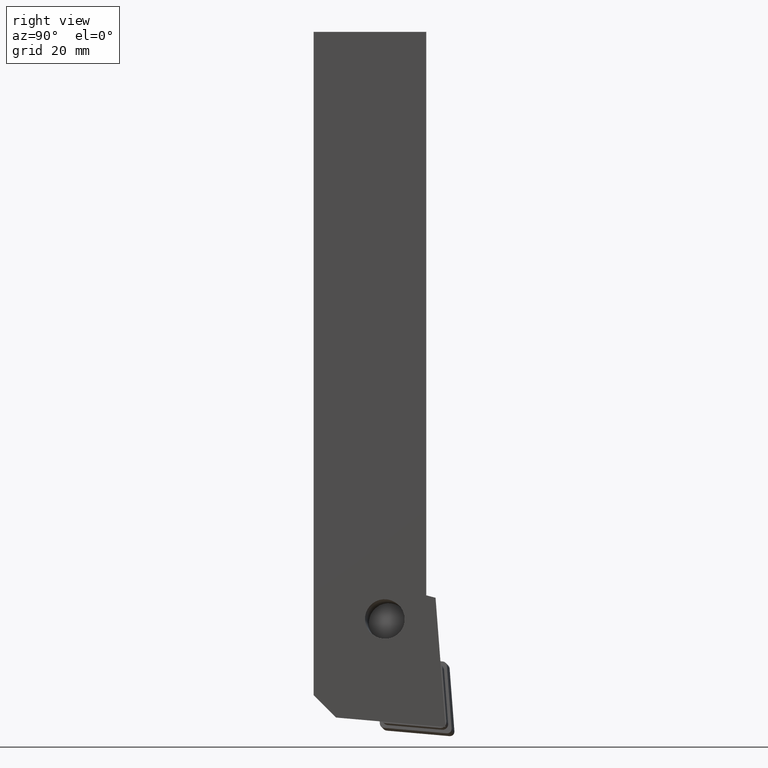
[diagram: clean part render]
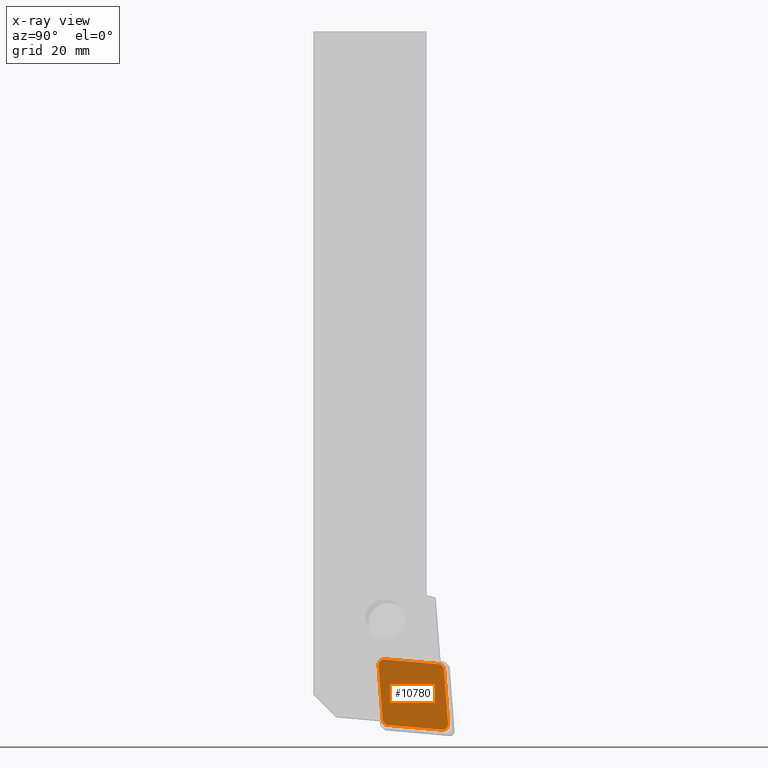
[diagram: x-ray — body ghosted, one internal face saturated and labeled with its STEP entity id]
A machine part, right view, then the same camera in x-ray: the body is ghosted and one INTERNAL B-rep face — a face not visible from any outside direction — is saturated and labeled: STEP entity #10780.
In plain terms, the highlighted planar face has unit normal (0.9891, -0.104, 0.1045).
Its self-contained STEP definition (entity closure, byte-faithful):
#10498=CARTESIAN_POINT('',(-14.741958886911522,10.090877205479279,-3.180000000000001));
#10499=VERTEX_POINT('',#10498);
#10500=CARTESIAN_POINT('',(-15.726766639923728,10.91722902781235,-3.180000000000001));
#10501=VERTEX_POINT('',#10500);
#10502=CARTESIAN_POINT('',(-14.741958886911522,11.090877205479279,-3.180000000000001));
#10503=DIRECTION('',(0.0,0.0,-1.0));
#10504=DIRECTION('',(-0.642787609686539,-0.766044443118978,0.0));
#10505=AXIS2_PLACEMENT_3D('',#10502,#10503,#10504);
#10506=CIRCLE('',#10505,1.0);
#10507=EDGE_CURVE('',#10499,#10501,#10506,.T.);
#10541=CARTESIAN_POINT('',(-4.993863412808365,10.090877205479281,-3.180000000000001));
#10542=VERTEX_POINT('',#10541);
#10543=CARTESIAN_POINT('',(-4.993863412808365,10.090877205479281,-3.180000000000001));
#10544=DIRECTION('',(-1.0,0.0,0.0));
#10545=VECTOR('',#10544,9.748095474103156);
#10546=LINE('',#10543,#10545);
#10547=EDGE_CURVE('',#10542,#10499,#10546,.T.);
#10630=CARTESIAN_POINT('',(-4.009055659796156,11.264525383146209,-3.180000000000001));
#10631=VERTEX_POINT('',#10630);
#10632=CARTESIAN_POINT('',(-4.993863412808365,11.090877205479281,-3.180000000000001));
#10633=DIRECTION('',(0.0,0.0,-1.0));
#10634=DIRECTION('',(0.766044443118977,-0.642787609686541,0.0));
#10635=AXIS2_PLACEMENT_3D('',#10632,#10633,#10634);
#10636=CIRCLE('',#10635,1.0);
#10637=EDGE_CURVE('',#10631,#10542,#10636,.T.);
#10656=CARTESIAN_POINT('',(-5.701794674597421,20.864525383146212,-3.180000000000001));
#10657=VERTEX_POINT('',#10656);
#10658=CARTESIAN_POINT('',(-5.701794674597421,20.864525383146212,-3.180000000000001));
#10659=DIRECTION('',(0.17364817766693,-0.984807753012208,0.0));
#10660=VECTOR('',#10659,9.748095474103158);
#10661=LINE('',#10658,#10660);
#10662=EDGE_CURVE('',#10657,#10631,#10661,.T.);
#10679=CARTESIAN_POINT('',(-6.686602427609629,21.690877205479282,-3.180000000000001));
#10680=VERTEX_POINT('',#10679);
#10681=CARTESIAN_POINT('',(-6.686602427609629,20.690877205479282,-3.180000000000001));
#10682=DIRECTION('',(0.0,0.0,-1.0));
#10683=DIRECTION('',(0.64278760968654,0.766044443118977,0.0));
#10684=AXIS2_PLACEMENT_3D('',#10681,#10682,#10683);
#10685=CIRCLE('',#10684,1.0);
#10686=EDGE_CURVE('',#10680,#10657,#10685,.T.);
#10705=CARTESIAN_POINT('',(-16.434697901712788,21.690877205479286,-3.180000000000001));
#10706=VERTEX_POINT('',#10705);
#10707=CARTESIAN_POINT('',(-16.434697901712788,21.690877205479286,-3.180000000000001));
#10708=DIRECTION('',(1.0,0.0,0.0));
#10709=VECTOR('',#10708,9.74809547410316);
#10710=LINE('',#10707,#10709);
#10711=EDGE_CURVE('',#10706,#10680,#10710,.T.);
#10728=CARTESIAN_POINT('',(-17.419505654724997,20.517229027812355,-3.180000000000001));
#10729=VERTEX_POINT('',#10728);
#10730=CARTESIAN_POINT('',(-16.434697901712788,20.690877205479286,-3.180000000000001));
#10731=DIRECTION('',(0.0,0.0,-1.0));
#10732=DIRECTION('',(-0.766044443118977,0.642787609686541,0.0));
#10733=AXIS2_PLACEMENT_3D('',#10730,#10731,#10732);
#10734=CIRCLE('',#10733,1.0);
#10735=EDGE_CURVE('',#10729,#10706,#10734,.T.);
#10756=CARTESIAN_POINT('',(-15.726766639923728,10.91722902781235,-3.180000000000001));
#10757=DIRECTION('',(-0.173648177666931,0.984807753012208,0.0));
#10758=VECTOR('',#10757,9.748095474103158);
#10759=LINE('',#10756,#10758);
#10760=EDGE_CURVE('',#10501,#10729,#10759,.T.);
#10765=CARTESIAN_POINT('',(-10.714280657260577,15.89087720547928,-3.180000000000001));
#10766=DIRECTION('',(0.0,0.0,1.0));
#10767=DIRECTION('',(1.0,0.0,0.0));
#10768=AXIS2_PLACEMENT_3D('',#10765,#10766,#10767);
#10769=PLANE('',#10768);
#10770=ORIENTED_EDGE('',*,*,#10507,.T.);
#10771=ORIENTED_EDGE('',*,*,#10760,.T.);
#10772=ORIENTED_EDGE('',*,*,#10735,.T.);
#10773=ORIENTED_EDGE('',*,*,#10711,.T.);
#10774=ORIENTED_EDGE('',*,*,#10686,.T.);
#10775=ORIENTED_EDGE('',*,*,#10662,.T.);
#10776=ORIENTED_EDGE('',*,*,#10637,.T.);
#10777=ORIENTED_EDGE('',*,*,#10547,.T.);
#10778=EDGE_LOOP('',(#10770,#10771,#10772,#10773,#10774,#10775,#10776,#10777));
#10779=FACE_OUTER_BOUND('',#10778,.T.);
#10780=ADVANCED_FACE('',(#10779),#10769,.F.);